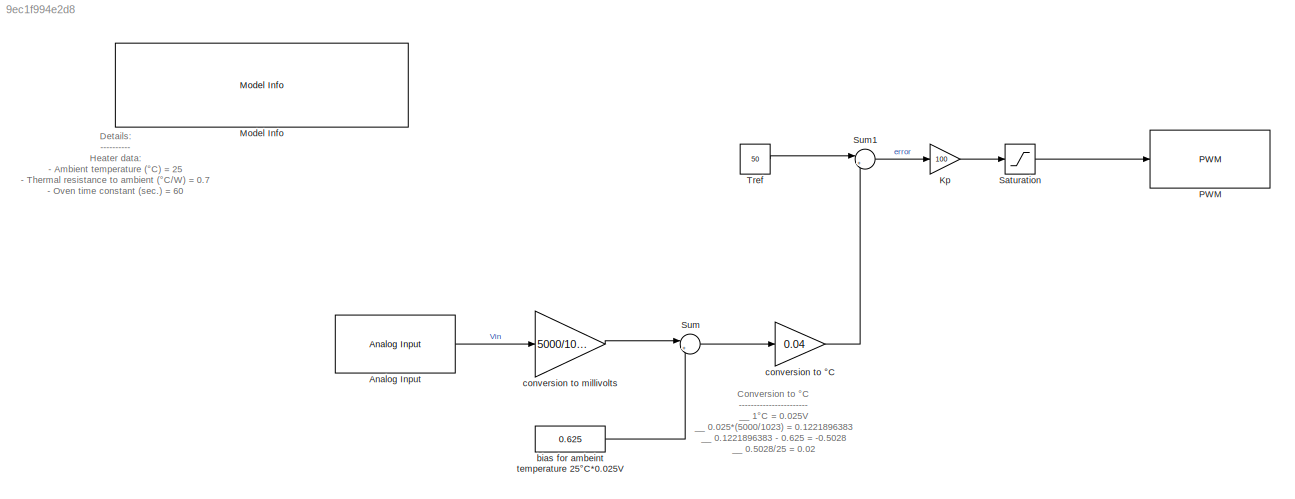
MODEL slx_9ec1f994e2d8
KIND model
CONFIG AbsTol = auto
CONFIG EnableMultiTasking = on
CONFIG FixedStep = auto
CONFIG MaxStep = auto
CONFIG MinStep = auto
CONFIG RelTol = 1e-3
CONFIG SampleTimeConstraint = Unconstrained
CONFIG Solver = FixedStepAuto
CONFIG SolverName = FixedStepAuto
CONFIG StartTime = 0.0
CONFIG StopTime = inf
BLOCK [Reference] Analog Input  REF=arduinolib/Analog Input
  Ports = [0, 1]
  SourceBlock = arduinolib/Analog Input
  SourceProductBaseCode = ARDUINO
  SourceType = Arduino Analog Input
BLOCK [Gain] Kp
  Gain = 100
BLOCK [Reference] Model Info  REF=simulink/Model-Wide
Utilities/Model Info
  Ports = []
  SourceBlock = simulink/Model-Wide\nUtilities/Model Info
  SourceProductBaseCode = SL
  SourceType = CMBlock
BLOCK [Reference] PWM  REF=arduinolib/PWM
  Ports = [1]
  SourceBlock = arduinolib/PWM
  SourceProductBaseCode = ARDUINO
  SourceType = Arduino PWM
BLOCK [Saturate] Saturation
  LowerLimit = 0
  UpperLimit = 255
BLOCK [Sum] Sum
  Inputs = |+-
  Ports = [2, 1]
BLOCK [Sum] Sum1
  Inputs = |+-
  Ports = [2, 1]
BLOCK [Constant] Tref
  Value = 50
BLOCK [Constant] bias for ambeint temperature 25°C*0.025V
  Value = 0.625
BLOCK [Gain] conversion to millivolts
  Gain = 5000/1023
BLOCK [Gain] conversion to °C
  Gain = 0.04
ANNOTATION (root): Conversion to °C ----------------------- __ 1°C = 0.025V __ 0.025*(5000/1023) = 0.1221896383 __ 0.1221896383 - 0.625 = -0.5028 __ 0.5028/25 = 0.02 __ 0.02 * 2 = 0.04
ANNOTATION (root): Details: ---------- Heater data: - Ambient temperature (°C) = 25 - Thermal resistance to ambient (°C/W) = 0.7 - Oven time constant (sec.) = 60 - Heater time constant (sec.) = 0.6 - Temperature coefficient (V/°C) = 0.025 - Heating power (W) = 250
LINE Analog Input:1 -> conversion to millivolts:1
LINE Kp:1 -> Saturation:1
LINE Saturation:1 -> PWM:1
LINE Sum1:1 -> Kp:1
LINE Sum:1 -> conversion to °C:1
LINE Tref:1 -> Sum1:1
LINE bias for ambeint temperature 25°C*0.025V:1 -> Sum:2
LINE conversion to millivolts:1 -> Sum:1
LINE conversion to °C:1 -> Sum1:2
